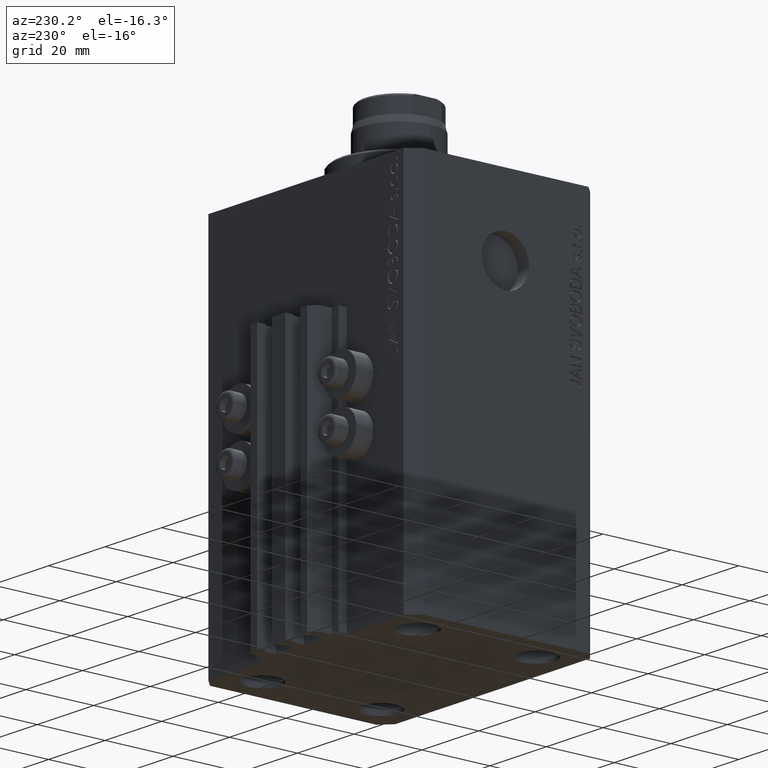
[diagram: clean part render]
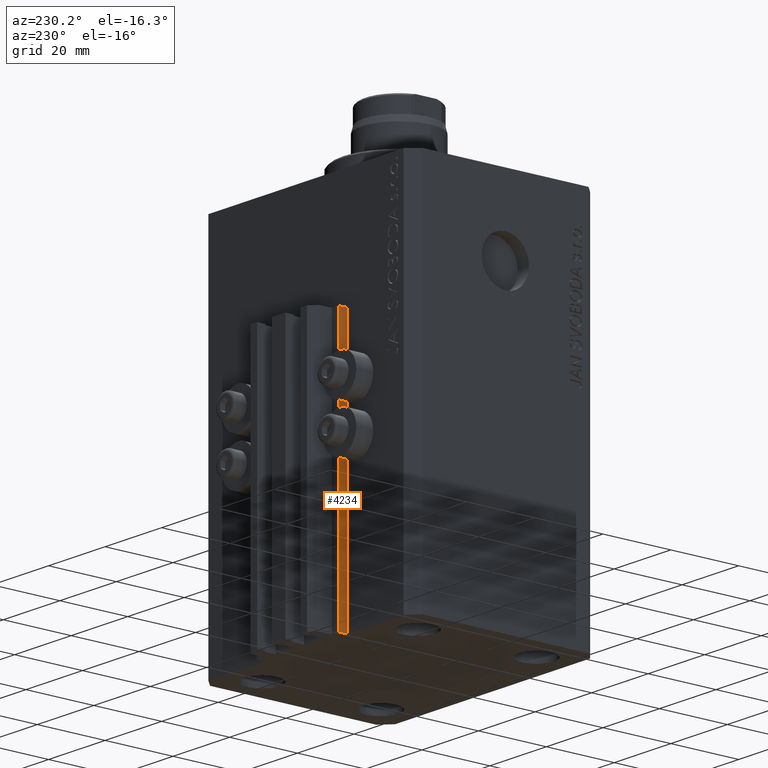
[diagram: same view with one face highlighted and labeled with its STEP entity id]
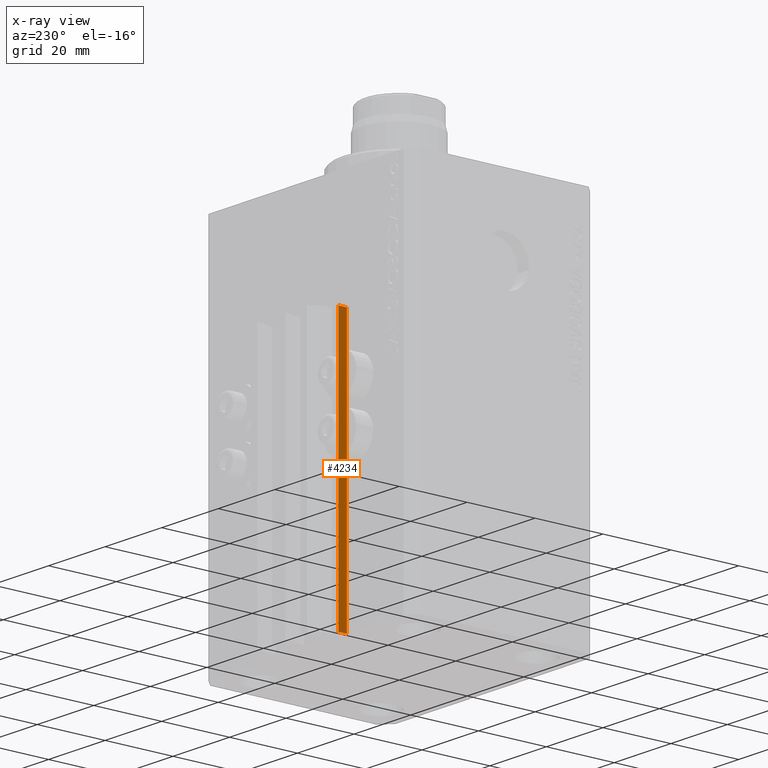
[diagram: x-ray of the same camera — body ghosted, the highlighted face saturated]
A machine part, auxiliary view. The second image highlights one B-rep face of the part: STEP entity #4234.
The next image is the same camera in x-ray: the body ghosted, the highlighted face saturated — about 0% of this face is hidden behind the body in this view.
In plain terms, the highlighted planar face has unit normal (-1, 0, 0).
Its self-contained STEP definition (entity closure, byte-faithful):
#4234 = ADVANCED_FACE ( 'NONE', ( #19082 ), #32576, .T. ) ;
#5820 = CARTESIAN_POINT ( 'NONE',  ( -14.50000000000000000, 29.99999999999999289, -110.0000000000000000 ) ) ;
#7183 = CARTESIAN_POINT ( 'NONE',  ( -14.50000000000000000, 27.50000000000000355, -33.00000000000000000 ) ) ;
#10591 = DIRECTION ( 'NONE',  ( 0.000000000000000000, 0.000000000000000000, 1.000000000000000000 ) ) ;
#10744 = DIRECTION ( 'NONE',  ( 0.000000000000000000, 0.000000000000000000, 1.000000000000000000 ) ) ;
#11258 = EDGE_CURVE ( 'NONE', #46671, #19224, #40158, .T. ) ;
#12165 = EDGE_CURVE ( 'NONE', #46671, #15274, #43011, .T. ) ;
#13273 = CARTESIAN_POINT ( 'NONE',  ( -14.50000000000000000, 29.99999999999999289, -33.00000000000000000 ) ) ;
#15274 = VERTEX_POINT ( 'NONE', #13273 ) ;
#16013 = DIRECTION ( 'NONE',  ( 0.000000000000000000, -1.000000000000000000, 0.000000000000000000 ) ) ;
#16200 = ORIENTED_EDGE ( 'NONE', *, *, #12165, .F. ) ;
#18382 = DIRECTION ( 'NONE',  ( -1.000000000000000000, 0.000000000000000000, 0.000000000000000000 ) ) ;
#19082 = FACE_OUTER_BOUND ( 'NONE', #38270, .T. ) ;
#19224 = VERTEX_POINT ( 'NONE', #41710 ) ;
#21406 = LINE ( 'NONE', #28751, #29720 ) ;
#21922 = CARTESIAN_POINT ( 'NONE',  ( -14.50000000000000000, 29.99999999999999289, -110.0000000000000000 ) ) ;
#22166 = DIRECTION ( 'NONE',  ( 0.000000000000000000, -1.000000000000000000, 0.000000000000000000 ) ) ;
#25414 = AXIS2_PLACEMENT_3D ( 'NONE', #21922, #18382, #32812 ) ;
#28751 = CARTESIAN_POINT ( 'NONE',  ( -14.50000000000000000, 27.50000000000000355, -110.0000000000000000 ) ) ;
#29720 = VECTOR ( 'NONE', #10744, 1000.000000000000000 ) ;
#30218 = LINE ( 'NONE', #40864, #36966 ) ;
#32576 = PLANE ( 'NONE',  #25414 ) ;
#32812 = DIRECTION ( 'NONE',  ( 0.000000000000000000, 0.000000000000000000, 1.000000000000000000 ) ) ;
#34676 = VECTOR ( 'NONE', #22166, 1000.000000000000000 ) ;
#35321 = ORIENTED_EDGE ( 'NONE', *, *, #36796, .F. ) ;
#36796 = EDGE_CURVE ( 'NONE', #15274, #39995, #30218, .T. ) ;
#36966 = VECTOR ( 'NONE', #16013, 1000.000000000000000 ) ;
#38270 = EDGE_LOOP ( 'NONE', ( #35321, #16200, #42206, #39120 ) ) ;
#39120 = ORIENTED_EDGE ( 'NONE', *, *, #46000, .T. ) ;
#39458 = CARTESIAN_POINT ( 'NONE',  ( -14.50000000000000000, 29.99999999999999289, -110.0000000000000000 ) ) ;
#39995 = VERTEX_POINT ( 'NONE', #7183 ) ;
#40158 = LINE ( 'NONE', #43001, #34676 ) ;
#40864 = CARTESIAN_POINT ( 'NONE',  ( -14.50000000000000000, 29.99999999999999289, -33.00000000000000000 ) ) ;
#41710 = CARTESIAN_POINT ( 'NONE',  ( -14.50000000000000000, 27.50000000000000355, -110.0000000000000000 ) ) ;
#42206 = ORIENTED_EDGE ( 'NONE', *, *, #11258, .T. ) ;
#43001 = CARTESIAN_POINT ( 'NONE',  ( -14.50000000000000000, 29.99999999999999289, -110.0000000000000000 ) ) ;
#43011 = LINE ( 'NONE', #39458, #46730 ) ;
#46000 = EDGE_CURVE ( 'NONE', #19224, #39995, #21406, .T. ) ;
#46671 = VERTEX_POINT ( 'NONE', #5820 ) ;
#46730 = VECTOR ( 'NONE', #10591, 1000.000000000000000 ) ;